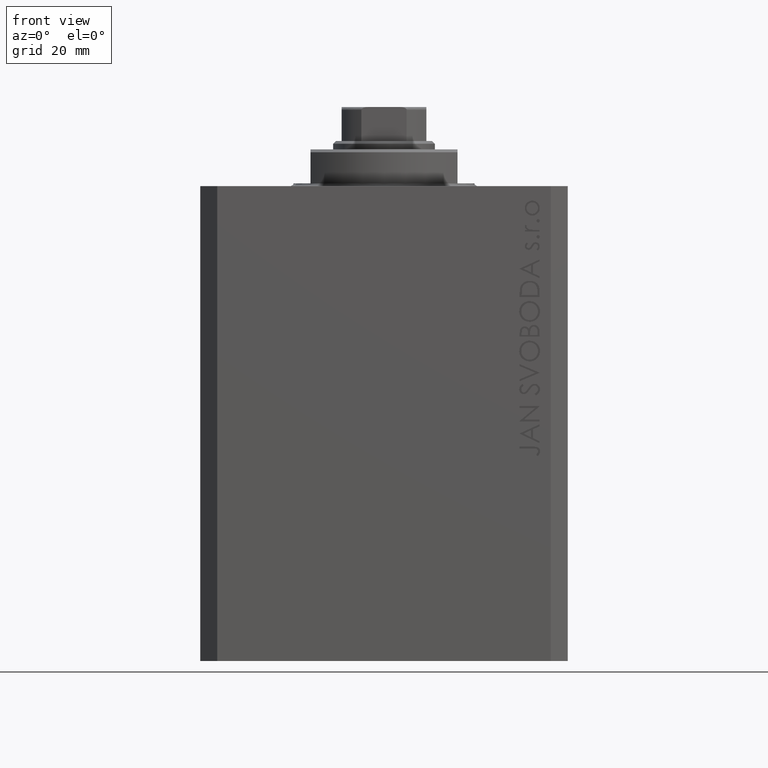
[diagram: clean part render]
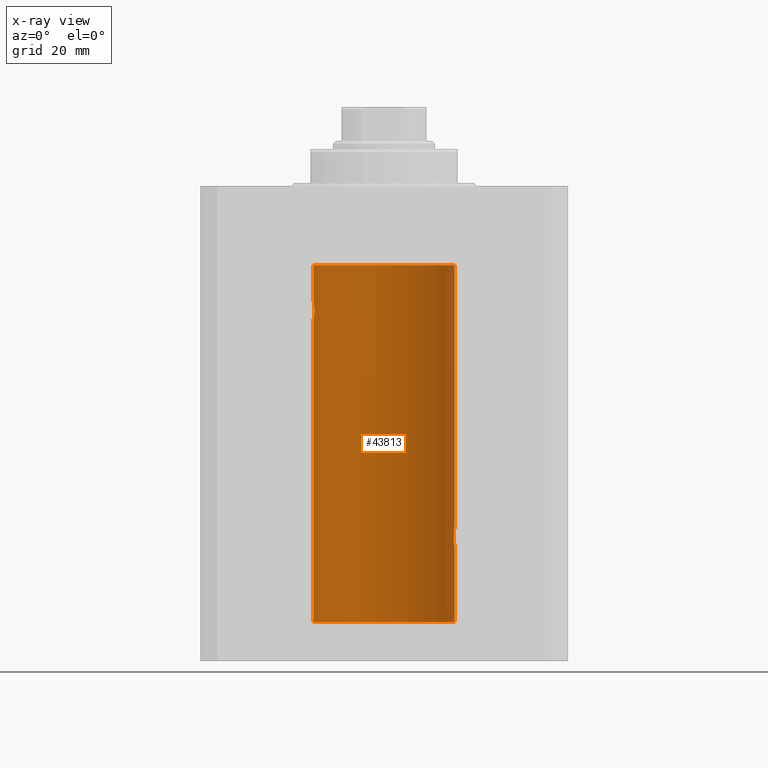
[diagram: x-ray — body ghosted, one internal face saturated and labeled with its STEP entity id]
A machine part, front view, then the same camera in x-ray: the body is ghosted and one INTERNAL B-rep face — a face not visible from any outside direction — is saturated and labeled: STEP entity #43813.
In plain terms, the highlighted cylindrical surface (partial cylindrical patch) has radius 12.5 mm, axis along (0, 0, 1).
Its self-contained STEP definition (entity closure, byte-faithful):
#172 = CARTESIAN_POINT ( 'NONE',  ( 12.37021546997940291, 1.797317011867410663, -61.11295119741077997 ) ) ;
#307 = EDGE_CURVE ( 'NONE', #23579, #32983, #6800, .T. ) ;
#650 = CARTESIAN_POINT ( 'NONE',  ( 12.39867611624532451, 1.590019252152836682, -60.77984495929612052 ) ) ;
#653 = B_SPLINE_CURVE_WITH_KNOTS ( 'NONE', 3,
 ( #32617, #40020, #47189, #4216, #29040, #172, #4457, #650, #7323, #14963, #19007, #43830, #14495, #29510, #33567, #32864, #15206, #21863 ),
 .UNSPECIFIED., .F., .F.,
 ( 4, 2, 2, 2, 2, 2, 2, 2, 4 ),
 ( 0.003132244164174477138, 0.003523586189974253335, 0.003914928215774029531, 0.004306270241573805294, 0.004697612267373581924, 0.005088954293173358553, 0.005480296318973134316, 0.005871638344772910079, 0.006262980370572685841 ),
 .UNSPECIFIED. ) ;
#1206 = CARTESIAN_POINT ( 'NONE',  ( 12.43016561391612562, 1.322713721413883547, -63.50578877836701963 ) ) ;
#1904 = EDGE_CURVE ( 'NONE', #27625, #26059, #29837, .T. ) ;
#2120 = CARTESIAN_POINT ( 'NONE',  ( -12.34109209020652465, 1.986986967296539897, -22.26269462454597914 ) ) ;
#2508 = CARTESIAN_POINT ( 'NONE',  ( 12.50000000000000000, 0.000000000000000000, -77.09999999999999432 ) ) ;
#4110 = VECTOR ( 'NONE', #42351, 1000.000000000000000 ) ;
#4216 = CARTESIAN_POINT ( 'NONE',  ( 12.34924836377099844, 1.935649219704940194, -61.48002062127162048 ) ) ;
#4457 = CARTESIAN_POINT ( 'NONE',  ( 12.37925647381943506, 1.734744884174226121, -60.99620732598648942 ) ) ;
#4535 = DIRECTION ( 'NONE',  ( 1.000000000000000000, 0.000000000000000000, 0.000000000000000000 ) ) ;
#4919 = VECTOR ( 'NONE', #37330, 1000.000000000000000 ) ;
#5231 = CARTESIAN_POINT ( 'NONE',  ( -12.44082361696003503, 1.219754986802281449, -20.40963319990594016 ) ) ;
#5470 = CARTESIAN_POINT ( 'NONE',  ( -12.46903010196599304, 0.8876934327478135378, -20.20300788371381984 ) ) ;
#5494 = CARTESIAN_POINT ( 'NONE',  ( 12.33896267925302404, 2.000000000000255795, -62.26143174220787557 ) ) ;
#5505 = EDGE_CURVE ( 'NONE', #15592, #22974, #10298, .T. ) ;
#6162 = CARTESIAN_POINT ( 'NONE',  ( -12.49789934882883458, 0.2624928479599910047, -20.01301208516349917 ) ) ;
#6800 = LINE ( 'NONE', #35913, #4919 ) ;
#7323 = CARTESIAN_POINT ( 'NONE',  ( 12.40916530024876785, 1.507117913375720653, -60.67865955049006743 ) ) ;
#8620 = ORIENTED_EDGE ( 'NONE', *, *, #307, .T. ) ;
#9300 = CARTESIAN_POINT ( 'NONE',  ( -12.50000000000000533, 0.1306394121199390135, -24.00000000000000711 ) ) ;
#10298 = B_SPLINE_CURVE_WITH_KNOTS ( 'NONE', 3,
 ( #37477, #13124, #38191, #30550, #20032, #27441, #45105, #41761, #1206, #23841, #45575, #34822, #5494, #26734 ),
 .UNSPECIFIED., .F., .F.,
 ( 4, 2, 2, 2, 2, 2, 4 ),
 ( 1.850875832140809093E-18, 0.0003915305205218040587, 0.0007830610410436062742, 0.001174591561565408761, 0.001566122082087210814, 0.002349183123130843542, 0.003132244164174477138 ),
 .UNSPECIFIED. ) ;
#10556 = EDGE_LOOP ( 'NONE', ( #45330, #14188, #39028, #32353, #34957, #8620, #27970, #17471, #37129 ) ) ;
#11564 = CARTESIAN_POINT ( 'NONE',  ( 12.33896267925302581, 2.000000000000254907, -62.00000000000000711 ) ) ;
#11615 = FACE_OUTER_BOUND ( 'NONE', #10556, .T. ) ;
#12030 = AXIS2_PLACEMENT_3D ( 'NONE', #15424, #23028, #36889 ) ;
#12627 = CARTESIAN_POINT ( 'NONE',  ( -12.37018026341338839, 1.797558627508998086, -22.88656313533016373 ) ) ;
#12868 = CARTESIAN_POINT ( 'NONE',  ( -12.48983485452574982, 0.5201193324741355539, -23.93561774521849372 ) ) ;
#12959 = LINE ( 'NONE', #41832, #29517 ) ;
#13098 = CARTESIAN_POINT ( 'NONE',  ( -12.48394649977302073, 0.6448065707253024526, -23.89773031393659153 ) ) ;
#13101 = VERTEX_POINT ( 'NONE', #45248 ) ;
#13124 = CARTESIAN_POINT ( 'NONE',  ( 12.50000000000000178, 0.1324055009716470777, -64.00000000000001421 ) ) ;
#13558 = CARTESIAN_POINT ( 'NONE',  ( -12.34781876294798053, 1.947190906025043633, -21.47436412829509678 ) ) ;
#14188 = ORIENTED_EDGE ( 'NONE', *, *, #38114, .F. ) ;
#14495 = CARTESIAN_POINT ( 'NONE',  ( 12.46910683544638054, 0.8866026273585047024, -60.20247863689692736 ) ) ;
#14833 = EDGE_CURVE ( 'NONE', #15670, #15592, #20629, .T. ) ;
#14963 = CARTESIAN_POINT ( 'NONE',  ( 12.43037348241797879, 1.320834183883841773, -60.49243837704294435 ) ) ;
#15206 = CARTESIAN_POINT ( 'NONE',  ( 12.50000000000000178, 0.1306079576516677165, -60.00000000000000711 ) ) ;
#15424 = CARTESIAN_POINT ( 'NONE',  ( 0.000000000000000000, 0.000000000000000000, -77.09999999999999432 ) ) ;
#15592 = VERTEX_POINT ( 'NONE', #32435 ) ;
#15670 = VERTEX_POINT ( 'NONE', #18829 ) ;
#15858 = CARTESIAN_POINT ( 'NONE',  ( -12.50000000000000000, 1.530808498934191521E-15, -77.09999999999999432 ) ) ;
#16320 = DIRECTION ( 'NONE',  ( -0.000000000000000000, -0.000000000000000000, 1.000000000000000000 ) ) ;
#16436 = CARTESIAN_POINT ( 'NONE',  ( -12.39873273758732175, 1.598680238462371062, -20.77033506126851137 ) ) ;
#16674 = CARTESIAN_POINT ( 'NONE',  ( -12.49788564268284041, 0.2633501011236127343, -23.98690384766255335 ) ) ;
#17129 = CARTESIAN_POINT ( 'NONE',  ( -12.33895470450623044, 2.000049200055401766, -22.12992629360264729 ) ) ;
#17471 = ORIENTED_EDGE ( 'NONE', *, *, #24030, .F. ) ;
#17589 = CIRCLE ( 'NONE', #18373, 12.50000000000000000 ) ;
#18373 = AXIS2_PLACEMENT_3D ( 'NONE', #30777, #41524, #41294 ) ;
#18829 = CARTESIAN_POINT ( 'NONE',  ( 12.50000000000000000, 0.000000000000000000, -77.09999999999999432 ) ) ;
#19007 = CARTESIAN_POINT ( 'NONE',  ( 12.44079117518645461, 1.220047488436376337, -60.40989676335084368 ) ) ;
#19821 = VECTOR ( 'NONE', #16320, 1000.000000000000000 ) ;
#20008 = CARTESIAN_POINT ( 'NONE',  ( -12.46021263690096958, 1.002494658017156981, -20.26446744561863156 ) ) ;
#20032 = CARTESIAN_POINT ( 'NONE',  ( 12.48390005916863110, 0.6457215011736545662, -63.89742771554267620 ) ) ;
#20629 = LINE ( 'NONE', #2508, #4110 ) ;
#20708 = CARTESIAN_POINT ( 'NONE',  ( -12.39864157855465088, 1.590288205413973532, -23.21980790594580313 ) ) ;
#21863 = CARTESIAN_POINT ( 'NONE',  ( 12.50000000000000000, -7.266276684081261841E-23, -60.00000000000000711 ) ) ;
#22649 = CARTESIAN_POINT ( 'NONE',  ( 0.000000000000000000, 0.000000000000000000, -13.99999999999999822 ) ) ;
#22974 = VERTEX_POINT ( 'NONE', #11564 ) ;
#23028 = DIRECTION ( 'NONE',  ( -0.000000000000000000, -0.000000000000000000, 1.000000000000000000 ) ) ;
#23579 = VERTEX_POINT ( 'NONE', #32614 ) ;
#23662 = AXIS2_PLACEMENT_3D ( 'NONE', #22649, #37221, #4535 ) ;
#23841 = CARTESIAN_POINT ( 'NONE',  ( 12.39869754437268767, 1.598954131913727261, -63.22932152813014284 ) ) ;
#24030 = EDGE_CURVE ( 'NONE', #27625, #13101, #12959, .T. ) ;
#26059 = VERTEX_POINT ( 'NONE', #39944 ) ;
#26734 = CARTESIAN_POINT ( 'NONE',  ( 12.33896267925302581, 2.000000000000254907, -62.00000000000000711 ) ) ;
#27037 = DIRECTION ( 'NONE',  ( -0.000000000000000000, -0.000000000000000000, 1.000000000000000000 ) ) ;
#27054 = LINE ( 'NONE', #15858, #19821 ) ;
#27416 = CARTESIAN_POINT ( 'NONE',  ( -12.34922241902463114, 1.935814255713574239, -22.51937350851555308 ) ) ;
#27441 = CARTESIAN_POINT ( 'NONE',  ( 12.46901623405144655, 0.8878913781257908866, -63.79689651717551868 ) ) ;
#27625 = VERTEX_POINT ( 'NONE', #35668 ) ;
#27641 = CARTESIAN_POINT ( 'NONE',  ( -12.50000000000000000, 1.867773856434666690E-17, -20.00000000000000000 ) ) ;
#27869 = CARTESIAN_POINT ( 'NONE',  ( -12.44076681548080288, 1.220297236145718944, -23.58991408680628155 ) ) ;
#27970 = ORIENTED_EDGE ( 'NONE', *, *, #41032, .T. ) ;
#29040 = CARTESIAN_POINT ( 'NONE',  ( 12.35520276972935250, 1.897773362058245761, -61.35528278634336630 ) ) ;
#29510 = CARTESIAN_POINT ( 'NONE',  ( 12.48395395845270528, 0.6446573166014701872, -60.10222124213519379 ) ) ;
#29517 = VECTOR ( 'NONE', #27037, 1000.000000000000000 ) ;
#29782 = CIRCLE ( 'NONE', #23662, 12.50000000000000000 ) ;
#29837 = B_SPLINE_CURVE_WITH_KNOTS ( 'NONE', 3,
 ( #27641, #38864, #6162, #38165, #37923, #5470, #20008, #5231, #34568, #16436, #30983, #13558, #45550, #17129, #2120, #27416, #45307, #12627, #41977, #20708, #46019, #45790, #27869, #35262, #41498, #13098, #12868, #16674, #9300, #38398 ),
 .UNSPECIFIED., .F., .F.,
 ( 4, 2, 2, 2, 2, 2, 2, 2, 2, 2, 2, 2, 2, 2, 4 ),
 ( 1.814683826656258666E-20, 0.0003914362731607577369, 0.0007828725463215154739, 0.001174308819482273265, 0.001565745092643030948, 0.002348617638964546530, 0.003131490185286061895, 0.003522926458446825216, 0.003914362731607588103, 0.004305799004768351423, 0.004697235277929114744, 0.005088671551089878065, 0.005480107824250641385, 0.005871544097411404706, 0.006262980370572168026 ),
 .UNSPECIFIED. ) ;
#30550 = CARTESIAN_POINT ( 'NONE',  ( 12.48989642018887558, 0.5185418732824270682, -63.93601292187606333 ) ) ;
#30777 = CARTESIAN_POINT ( 'NONE',  ( 0.000000000000000000, 0.000000000000000000, -77.09999999999999432 ) ) ;
#30983 = CARTESIAN_POINT ( 'NONE',  ( -12.37764291807175354, 1.747608771958140794, -20.99316879552500481 ) ) ;
#32353 = ORIENTED_EDGE ( 'NONE', *, *, #5505, .T. ) ;
#32435 = CARTESIAN_POINT ( 'NONE',  ( 12.50000000000000000, 1.905024688046704159E-15, -64.00000000000001421 ) ) ;
#32614 = CARTESIAN_POINT ( 'NONE',  ( 12.50000000000000000, -7.266276684081261841E-23, -60.00000000000000711 ) ) ;
#32617 = CARTESIAN_POINT ( 'NONE',  ( 12.33896267925302581, 2.000000000000254907, -62.00000000000000711 ) ) ;
#32864 = CARTESIAN_POINT ( 'NONE',  ( 12.49788668346399945, 0.2632864803365704276, -60.01308975838333737 ) ) ;
#32983 = VERTEX_POINT ( 'NONE', #33528 ) ;
#33077 = CYLINDRICAL_SURFACE ( 'NONE', #12030, 12.50000000000000000 ) ;
#33528 = CARTESIAN_POINT ( 'NONE',  ( 12.50000000000000000, 0.000000000000000000, -13.99999999999999822 ) ) ;
#33567 = CARTESIAN_POINT ( 'NONE',  ( 12.48983962833819206, 0.5199974825204910500, -60.06435160808018736 ) ) ;
#34568 = CARTESIAN_POINT ( 'NONE',  ( -12.43019346654084956, 1.322451657002078340, -20.49398366327208620 ) ) ;
#34822 = CARTESIAN_POINT ( 'NONE',  ( 12.34779119491631505, 1.947363444907019847, -62.52502775168252214 ) ) ;
#34957 = ORIENTED_EDGE ( 'NONE', *, *, #46250, .T. ) ;
#35262 = CARTESIAN_POINT ( 'NONE',  ( -12.46009879577771606, 1.003863686549169465, -23.73470742397611843 ) ) ;
#35668 = CARTESIAN_POINT ( 'NONE',  ( -12.50000000000000000, 1.867773856434666690E-17, -20.00000000000000000 ) ) ;
#35913 = CARTESIAN_POINT ( 'NONE',  ( 12.50000000000000000, 0.000000000000000000, -77.09999999999999432 ) ) ;
#36889 = DIRECTION ( 'NONE',  ( 1.000000000000000000, 0.000000000000000000, 0.000000000000000000 ) ) ;
#37129 = ORIENTED_EDGE ( 'NONE', *, *, #1904, .T. ) ;
#37221 = DIRECTION ( 'NONE',  ( 0.000000000000000000, 0.000000000000000000, 1.000000000000000000 ) ) ;
#37330 = DIRECTION ( 'NONE',  ( -0.000000000000000000, -0.000000000000000000, 1.000000000000000000 ) ) ;
#37477 = CARTESIAN_POINT ( 'NONE',  ( 12.50000000000000000, 1.905024688046704159E-15, -64.00000000000001421 ) ) ;
#37923 = CARTESIAN_POINT ( 'NONE',  ( -12.48390768591463207, 0.6455696738844916016, -20.10252270298193977 ) ) ;
#38114 = EDGE_CURVE ( 'NONE', #15670, #44301, #17589, .T. ) ;
#38165 = CARTESIAN_POINT ( 'NONE',  ( -12.48990118705761532, 0.5184196815546056047, -20.06395648222637007 ) ) ;
#38191 = CARTESIAN_POINT ( 'NONE',  ( 12.49789833780794446, 0.2625555164371027317, -63.98698170822147802 ) ) ;
#38398 = CARTESIAN_POINT ( 'NONE',  ( -12.50000000000000000, 1.530808426276628993E-15, -23.99999999999999645 ) ) ;
#38711 = CARTESIAN_POINT ( 'NONE',  ( -12.50000000000000000, 1.530808498934191521E-15, -77.09999999999999432 ) ) ;
#38864 = CARTESIAN_POINT ( 'NONE',  ( -12.50000000000000000, 0.1323736289504353625, -20.00000000000000000 ) ) ;
#39028 = ORIENTED_EDGE ( 'NONE', *, *, #14833, .T. ) ;
#39851 = EDGE_CURVE ( 'NONE', #44301, #26059, #27054, .T. ) ;
#39944 = CARTESIAN_POINT ( 'NONE',  ( -12.50000000000000000, 1.530808426276628993E-15, -23.99999999999999645 ) ) ;
#40020 = CARTESIAN_POINT ( 'NONE',  ( 12.33896267925302759, 2.000000000000254907, -61.86934705949918367 ) ) ;
#41032 = EDGE_CURVE ( 'NONE', #32983, #13101, #29782, .T. ) ;
#41294 = DIRECTION ( 'NONE',  ( 1.000000000000000000, 0.000000000000000000, 0.000000000000000000 ) ) ;
#41498 = CARTESIAN_POINT ( 'NONE',  ( -12.46909283808506430, 0.8868029758979402155, -23.79742491916155345 ) ) ;
#41524 = DIRECTION ( 'NONE',  ( 0.000000000000000000, 0.000000000000000000, 1.000000000000000000 ) ) ;
#41761 = CARTESIAN_POINT ( 'NONE',  ( 12.44079900692650753, 1.220007525301743279, -63.59017579083667471 ) ) ;
#41832 = CARTESIAN_POINT ( 'NONE',  ( -12.50000000000000000, 1.530808498934191521E-15, -77.09999999999999432 ) ) ;
#41977 = CARTESIAN_POINT ( 'NONE',  ( -12.37922086519035325, 1.734998657226764829, -23.00335814299181436 ) ) ;
#42351 = DIRECTION ( 'NONE',  ( -0.000000000000000000, -0.000000000000000000, 1.000000000000000000 ) ) ;
#43813 = ADVANCED_FACE ( 'NONE', ( #11615 ), #33077, .F. ) ;
#43830 = CARTESIAN_POINT ( 'NONE',  ( 12.46011632531799584, 1.003644408234891205, -60.26516799687671977 ) ) ;
#44301 = VERTEX_POINT ( 'NONE', #38711 ) ;
#45105 = CARTESIAN_POINT ( 'NONE',  ( 12.46019522898365217, 1.002712894177338887, -63.73540896027601832 ) ) ;
#45248 = CARTESIAN_POINT ( 'NONE',  ( -12.50000000000000000, 1.530808498934191521E-15, -13.99999999999999822 ) ) ;
#45307 = CARTESIAN_POINT ( 'NONE',  ( -12.35517291625592051, 1.897967064543089721, -22.64415233770293412 ) ) ;
#45330 = ORIENTED_EDGE ( 'NONE', *, *, #39851, .F. ) ;
#45550 = CARTESIAN_POINT ( 'NONE',  ( -12.33897869807161385, 1.999901172190678089, -21.73788193668374547 ) ) ;
#45575 = CARTESIAN_POINT ( 'NONE',  ( 12.37760587642916299, 1.747868572747730997, -63.00639653169000098 ) ) ;
#45790 = CARTESIAN_POINT ( 'NONE',  ( -12.43034574091277911, 1.321095788880539024, -23.50733550364322255 ) ) ;
#46019 = CARTESIAN_POINT ( 'NONE',  ( -12.40913174964213184, 1.507394620545641439, -23.32102833500698225 ) ) ;
#46250 = EDGE_CURVE ( 'NONE', #22974, #23579, #653, .T. ) ;
#47189 = CARTESIAN_POINT ( 'NONE',  ( 12.34110728646152388, 1.986893050944461336, -61.73661347764981855 ) ) ;